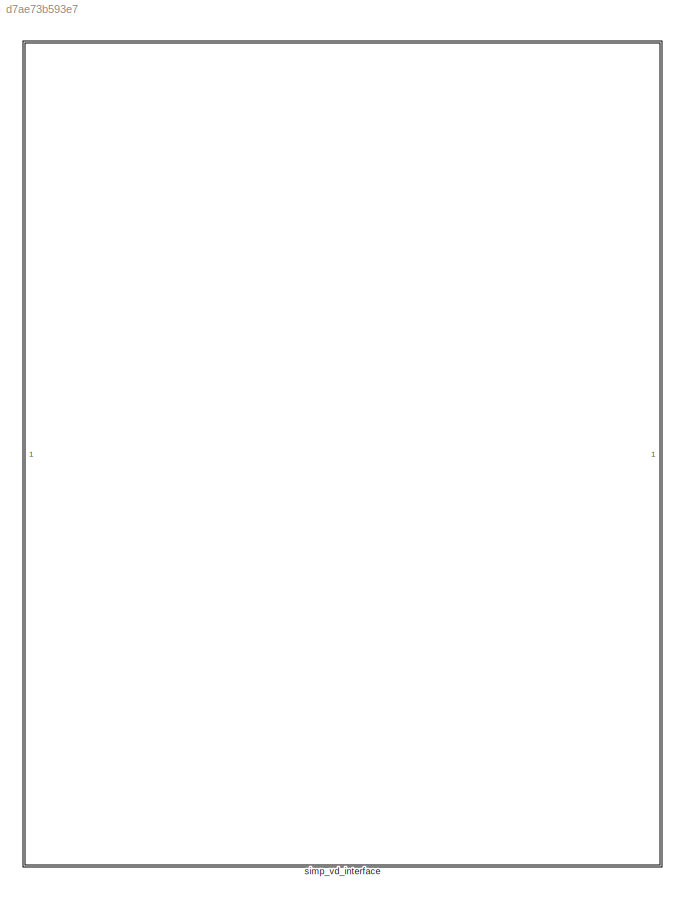
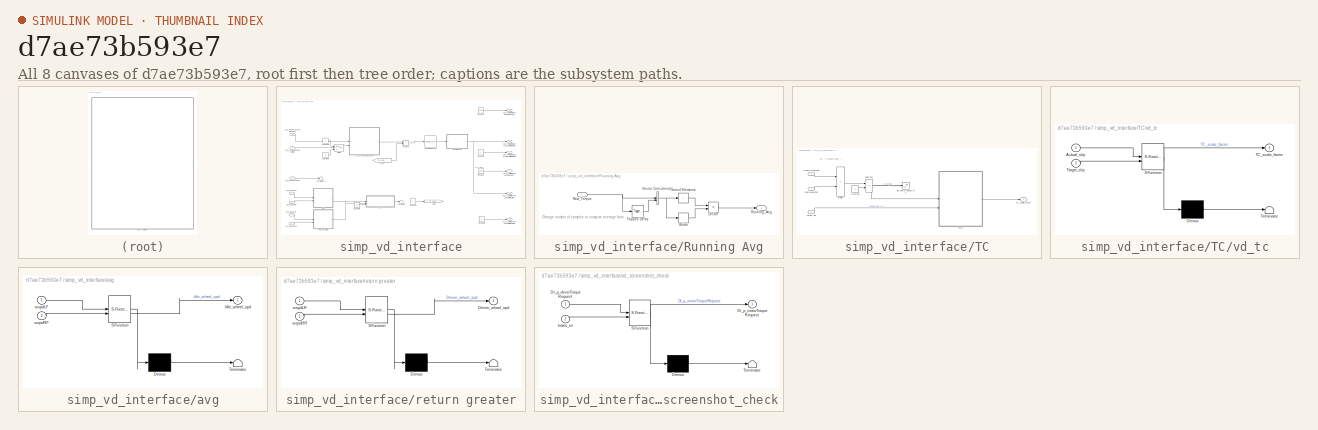
[diagram: thumbnail index - all 8 canvases of the model, root first then tree order]
MODEL slx_d7ae73b593e7
KIND library
CONFIG AbsTol = auto
CONFIG EnableMultiTasking = off
CONFIG FixedStep = auto
CONFIG MaxStep = auto
CONFIG MinStep = auto
CONFIG RelTol = 1e-3
CONFIG SampleTimeConstraint = Unconstrained
CONFIG SolverName = VariableStepAuto
CONFIG StartTime = 0.0
CONFIG StopTime = 10.0
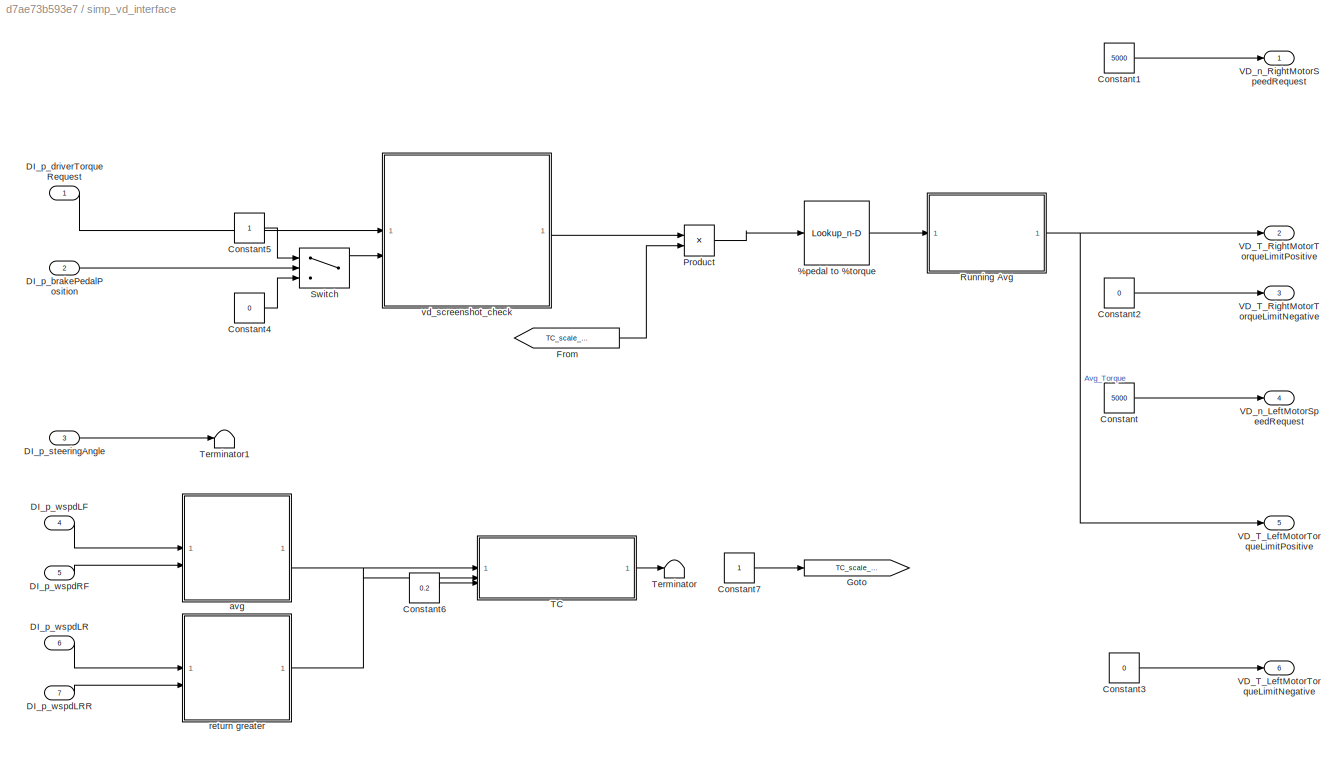
BLOCK [SubSystem] simp_vd_interface
BLOCK [Lookup_n-D] simp_vd_interface/%pedal to %torque
  BreakpointsForDimension1 = [linspace(0,1,101)]
  InputPortMap = u0
  InternalRulePriority = Speed
  NumberOfTableDimensions = 1
  RndMeth = Simplest
  Table = [linspace(0,1000,101)]
BLOCK [Constant] simp_vd_interface/Constant
  Value = 5000
BLOCK [Constant] simp_vd_interface/Constant1
  Value = 5000
BLOCK [Constant] simp_vd_interface/Constant2
  Value = 0
BLOCK [Constant] simp_vd_interface/Constant3
  Value = 0
BLOCK [Constant] simp_vd_interface/Constant4
  Value = 0
BLOCK [Constant] simp_vd_interface/Constant5
BLOCK [Constant] simp_vd_interface/Constant6
  Value = 0.2
BLOCK [Constant] simp_vd_interface/Constant7
BLOCK [Inport] simp_vd_interface/DI_p_brakePedalPosition
  Port = 2
BLOCK [Inport] simp_vd_interface/DI_p_driverTorqueRequest
BLOCK [Inport] simp_vd_interface/DI_p_steeringAngle
  Port = 3
BLOCK [Inport] simp_vd_interface/DI_p_wspdLF
  Port = 4
BLOCK [Inport] simp_vd_interface/DI_p_wspdLR
  Port = 6
BLOCK [Inport] simp_vd_interface/DI_p_wspdLRR
  Port = 7
BLOCK [Inport] simp_vd_interface/DI_p_wspdRF
  Port = 5
BLOCK [From] simp_vd_interface/From
  GotoTag = TC_scale_factor
BLOCK [Goto] simp_vd_interface/Goto
  GotoTag = TC_scale_factor
BLOCK [Product] simp_vd_interface/Product
BLOCK [SubSystem] simp_vd_interface/Running Avg
BLOCK [Product] simp_vd_interface/Running Avg/Divide
  Inputs = */
BLOCK [Inport] simp_vd_interface/Running Avg/Raw_Torque
BLOCK [Outport] simp_vd_interface/Running Avg/Running_Avg
BLOCK [Sum] simp_vd_interface/Running Avg/Sum of Elements
  IconShape = rectangular
  Inputs = +
BLOCK [Reference] simp_vd_interface/Running Avg/Tapped Delay  REF=simulink/Discrete/Tapped Delay
  SourceBlock = simulink/Discrete/Tapped Delay
  SourceType = Tapped Delay Line
BLOCK [Concatenate] simp_vd_interface/Running Avg/Vector Concatenate
BLOCK [Width] simp_vd_interface/Running Avg/Width
BLOCK [Switch] simp_vd_interface/Switch
  Criteria = u2 > Threshold
  InputSameDT = off
  SaturateOnIntegerOverflow = off
  Threshold = 0.1
BLOCK [SubSystem] simp_vd_interface/TC
BLOCK [Constant] simp_vd_interface/TC/Constant
BLOCK [Product] simp_vd_interface/TC/Divide
  Inputs = */
BLOCK [Inport] simp_vd_interface/TC/Driven_wheel_spd
  Port = 2
BLOCK [Inport] simp_vd_interface/TC/Idle_wheel_spd
BLOCK [Saturate] simp_vd_interface/TC/Set lower bound to 0
  LowerLimit = 0
  UpperLimit = inf
BLOCK [Sum] simp_vd_interface/TC/Subtract
  IconShape = rectangular
  Inputs = +-
BLOCK [Outport] simp_vd_interface/TC/TC_scale_factor
BLOCK [Inport] simp_vd_interface/TC/Target_slip
  Port = 3
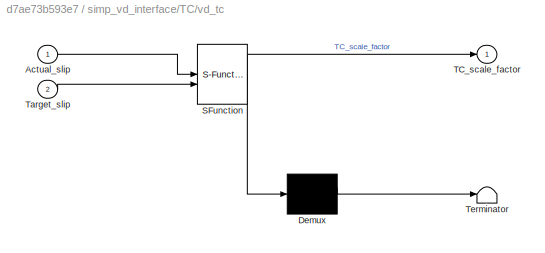
BLOCK [SubSystem] simp_vd_interface/TC/vd_tc
  ErrorFcn = Stateflow.Translate.translate
  PermitHierarchicalResolution = ExplicitOnly
  SFBlockType = Chart
  TreatAsAtomicUnit = on
BLOCK [Demux] simp_vd_interface/TC/vd_tc/ Demux 
  Outputs = 1
BLOCK [S-Function] simp_vd_interface/TC/vd_tc/ SFunction 
  EnableBusSupport = off
  FunctionName = sf_sfun
  PortCounts = [2 2]
  SFcnIsStateOwnerBlock = off
  SFunctionDeploymentMode = off
  Tag = Stateflow S-Function 1
BLOCK [Terminator] simp_vd_interface/TC/vd_tc/ Terminator 
BLOCK [Inport] simp_vd_interface/TC/vd_tc/Actual_slip
BLOCK [Outport] simp_vd_interface/TC/vd_tc/TC_scale_factor
BLOCK [Inport] simp_vd_interface/TC/vd_tc/Target_slip
  Port = 2
BLOCK [Terminator] simp_vd_interface/Terminator
BLOCK [Terminator] simp_vd_interface/Terminator1
BLOCK [Outport] simp_vd_interface/VD_T_LeftMotorTorqueLimitNegative
  Port = 6
BLOCK [Outport] simp_vd_interface/VD_T_LeftMotorTorqueLimitPositive
  Port = 5
BLOCK [Outport] simp_vd_interface/VD_T_RightMotorTorqueLimitNegative
  Port = 3
BLOCK [Outport] simp_vd_interface/VD_T_RightMotorTorqueLimitPositive
  Port = 2
BLOCK [Outport] simp_vd_interface/VD_n_LeftMotorSpeedRequest
  Port = 4
BLOCK [Outport] simp_vd_interface/VD_n_RightMotorSpeedRequest
BLOCK [SubSystem] simp_vd_interface/avg
  ErrorFcn = Stateflow.Translate.translate
  LibrarySourceBlock = simulink/User-Defined\nFunctions/MATLAB Function
  PermitHierarchicalResolution = ExplicitOnly
  SFBlockType = MATLAB Function
  TreatAsAtomicUnit = on
BLOCK [Demux] simp_vd_interface/avg/ Demux 
  Outputs = 1
BLOCK [S-Function] simp_vd_interface/avg/ SFunction 
  EnableBusSupport = off
  FunctionName = sf_sfun
  PortCounts = [2 2]
  SFcnIsStateOwnerBlock = off
  SFunctionDeploymentMode = off
  Tag = Stateflow S-Function 6
BLOCK [Terminator] simp_vd_interface/avg/ Terminator 
BLOCK [Outport] simp_vd_interface/avg/Idle_wheel_spd
BLOCK [Inport] simp_vd_interface/avg/wspdLF
BLOCK [Inport] simp_vd_interface/avg/wspdRF
  Port = 2
BLOCK [SubSystem] simp_vd_interface/return greater
  ErrorFcn = Stateflow.Translate.translate
  LibrarySourceBlock = simulink/User-Defined\nFunctions/MATLAB Function
  PermitHierarchicalResolution = ExplicitOnly
  SFBlockType = MATLAB Function
  TreatAsAtomicUnit = on
BLOCK [Demux] simp_vd_interface/return greater/ Demux 
  Outputs = 1
BLOCK [S-Function] simp_vd_interface/return greater/ SFunction 
  EnableBusSupport = off
  FunctionName = sf_sfun
  PortCounts = [2 2]
  SFcnIsStateOwnerBlock = off
  SFunctionDeploymentMode = off
  Tag = Stateflow S-Function 7
BLOCK [Terminator] simp_vd_interface/return greater/ Terminator 
BLOCK [Outport] simp_vd_interface/return greater/Driven_wheel_spd
BLOCK [Inport] simp_vd_interface/return greater/wspdLR
BLOCK [Inport] simp_vd_interface/return greater/wspdRR
  Port = 2
BLOCK [SubSystem] simp_vd_interface/vd_screenshot_check
  ErrorFcn = Stateflow.Translate.translate
  PermitHierarchicalResolution = ExplicitOnly
  SFBlockType = Chart
  TreatAsAtomicUnit = on
BLOCK [Demux] simp_vd_interface/vd_screenshot_check/ Demux 
  Outputs = 1
BLOCK [S-Function] simp_vd_interface/vd_screenshot_check/ SFunction 
  EnableBusSupport = off
  FunctionName = sf_sfun
  PortCounts = [2 2]
  SFcnIsStateOwnerBlock = off
  SFunctionDeploymentMode = off
  Tag = Stateflow S-Function 3
BLOCK [Terminator] simp_vd_interface/vd_screenshot_check/ Terminator 
BLOCK [Inport] simp_vd_interface/vd_screenshot_check/DI_p_driverTorqueRequest
BLOCK [Outport] simp_vd_interface/vd_screenshot_check/DI_p_motorTorqueRequest
BLOCK [Inport] simp_vd_interface/vd_screenshot_check/brake_on
  Port = 2
ANNOTATION simp_vd_interface/Running Avg: Change number of samples to compute average from
ANNOTATION simp_vd_interface/TC: SR = V_driven/V_idle - 1
LINE simp_vd_interface/%pedal to %torque:1 -> simp_vd_interface/Running Avg:1
LINE simp_vd_interface/Constant1:1 -> simp_vd_interface/VD_n_RightMotorSpeedRequest:1
LINE simp_vd_interface/Constant2:1 -> simp_vd_interface/VD_T_RightMotorTorqueLimitNegative:1
LINE simp_vd_interface/Constant3:1 -> simp_vd_interface/VD_T_LeftMotorTorqueLimitNegative:1
LINE simp_vd_interface/Constant4:1 -> simp_vd_interface/Switch:3
LINE simp_vd_interface/Constant5:1 -> simp_vd_interface/Switch:1
LINE simp_vd_interface/Constant6:1 -> simp_vd_interface/TC:3
LINE simp_vd_interface/Constant7:1 -> simp_vd_interface/Goto:1
LINE simp_vd_interface/Constant:1 -> simp_vd_interface/VD_n_LeftMotorSpeedRequest:1
LINE simp_vd_interface/DI_p_brakePedalPosition:1 -> simp_vd_interface/Switch:2
LINE simp_vd_interface/DI_p_driverTorqueRequest:1 -> simp_vd_interface/vd_screenshot_check:1
LINE simp_vd_interface/DI_p_steeringAngle:1 -> simp_vd_interface/Terminator1:1
LINE simp_vd_interface/DI_p_wspdLF:1 -> simp_vd_interface/avg:1
LINE simp_vd_interface/DI_p_wspdLR:1 -> simp_vd_interface/return greater:1
LINE simp_vd_interface/DI_p_wspdLRR:1 -> simp_vd_interface/return greater:2
LINE simp_vd_interface/DI_p_wspdRF:1 -> simp_vd_interface/avg:2
LINE simp_vd_interface/From:1 -> simp_vd_interface/Product:2
LINE simp_vd_interface/Product:1 -> simp_vd_interface/%pedal to %torque:1
LINE simp_vd_interface/Running Avg/Divide:1 -> simp_vd_interface/Running Avg/Running_Avg:1
NET simp_vd_interface/Running Avg/Raw_Torque:1 -> simp_vd_interface/Running Avg/Tapped Delay:1, simp_vd_interface/Running Avg/Vector Concatenate:1
LINE simp_vd_interface/Running Avg/Sum of Elements:1 -> simp_vd_interface/Running Avg/Divide:1
LINE simp_vd_interface/Running Avg/Tapped Delay:1 -> simp_vd_interface/Running Avg/Vector Concatenate:2
NET simp_vd_interface/Running Avg/Vector Concatenate:1 -> simp_vd_interface/Running Avg/Sum of Elements:1, simp_vd_interface/Running Avg/Width:1
LINE simp_vd_interface/Running Avg/Width:1 -> simp_vd_interface/Running Avg/Divide:2
NET simp_vd_interface/Running Avg:1 -> simp_vd_interface/VD_T_LeftMotorTorqueLimitPositive:1, simp_vd_interface/VD_T_RightMotorTorqueLimitPositive:1
LINE simp_vd_interface/Switch:1 -> simp_vd_interface/vd_screenshot_check:2
LINE simp_vd_interface/TC/Constant:1 -> simp_vd_interface/TC/Subtract:2
LINE simp_vd_interface/TC/Divide:1 -> simp_vd_interface/TC/Subtract:1
LINE simp_vd_interface/TC/Driven_wheel_spd:1 -> simp_vd_interface/TC/Divide:1
LINE simp_vd_interface/TC/Idle_wheel_spd:1 -> simp_vd_interface/TC/Divide:2
LINE simp_vd_interface/TC/Set lower bound to 0:1 -> simp_vd_interface/TC/vd_tc:1
LINE simp_vd_interface/TC/Subtract:1 -> simp_vd_interface/TC/Set lower bound to 0:1
LINE simp_vd_interface/TC/Target_slip:1 -> simp_vd_interface/TC/vd_tc:2
LINE simp_vd_interface/TC/vd_tc:1 -> simp_vd_interface/TC/TC_scale_factor:1
LINE simp_vd_interface/TC:1 -> simp_vd_interface/Terminator:1
LINE simp_vd_interface/avg:1 -> simp_vd_interface/TC:1
LINE simp_vd_interface/return greater:1 -> simp_vd_interface/TC:2
LINE simp_vd_interface/vd_screenshot_check:1 -> simp_vd_interface/Product:1
note: NET lines group one-source signal fan-out (src -> all destinations, sorted); 1:1 wires keep LINE
CHART simp_vd_interface/TC/vd_tc states=4 transitions=5
  STATE_LABEL 'TC_off\nen, du:\nTC_scale_factor = 1;'
  STATE_LABEL 'TC_on\nen, du:\nTC_scale_factor = 0.5;'
  STATE_LABEL 'TC_on1\nen, du:\nTC_scale_factor = 0.25;'
  STATE_LABEL 'TC_on2\nen, du:\nTC_scale_factor = 0;'
CHART simp_vd_interface/vd_screenshot_check states=2 transitions=3
  STATE_LABEL 'Run\nen, du:\nDI_p_motorTorqueRequest = DI_p_driverTorqueRequest;'
  STATE_LABEL 'Stop\nen, du:\nDI_p_motorTorqueRequest = 0;'
CHART simp_vd_interface/avg states=1 transitions=1
  STATE_LABEL 'eML_blk_kernel()'
  STATE_LABEL 'SCRIPT:\nfunction Idle_wheel_spd = fcn(wspdLF,wspdRF)\nIdle_wheel_spd = (wspdLF+wspdRF)/2;\n'
CHART simp_vd_interface/return greater states=1 transitions=1
  STATE_LABEL 'eML_blk_kernel()'
  STATE_LABEL 'SCRIPT:\nfunction Driven_wheel_spd = fcn(wspdLR,wspdRR)\nif wspdLR > wspdRR\n    Driven_wheel_spd = wspdLR;\nelse\n    Driven_wheel_spd = wspdRR;\nend\n\n'
CHART  states=0 transitions=0
CHART  states=0 transitions=0
CHART  states=0 transitions=0
CHART  states=0 transitions=0
